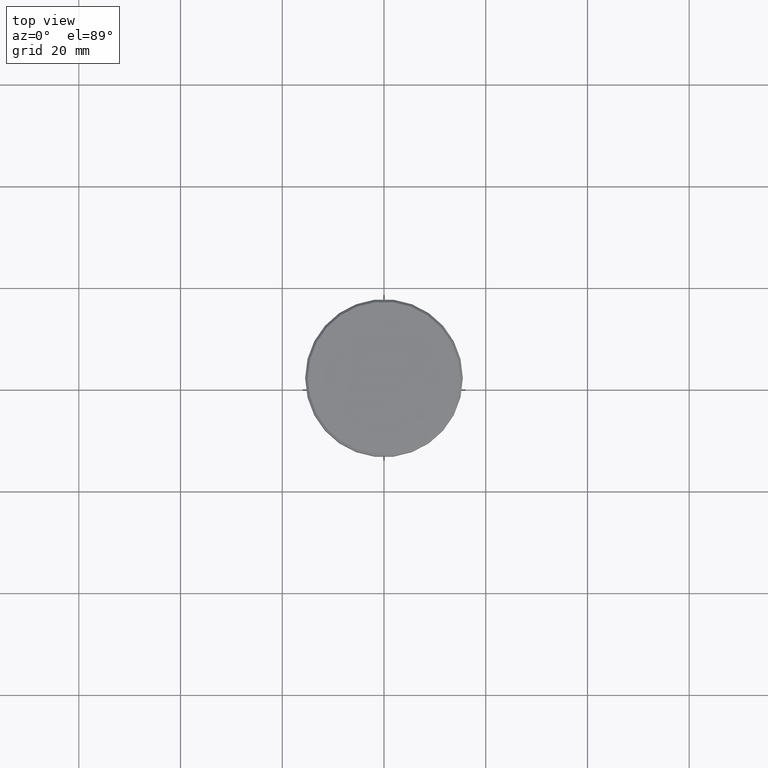
[diagram: clean part render]
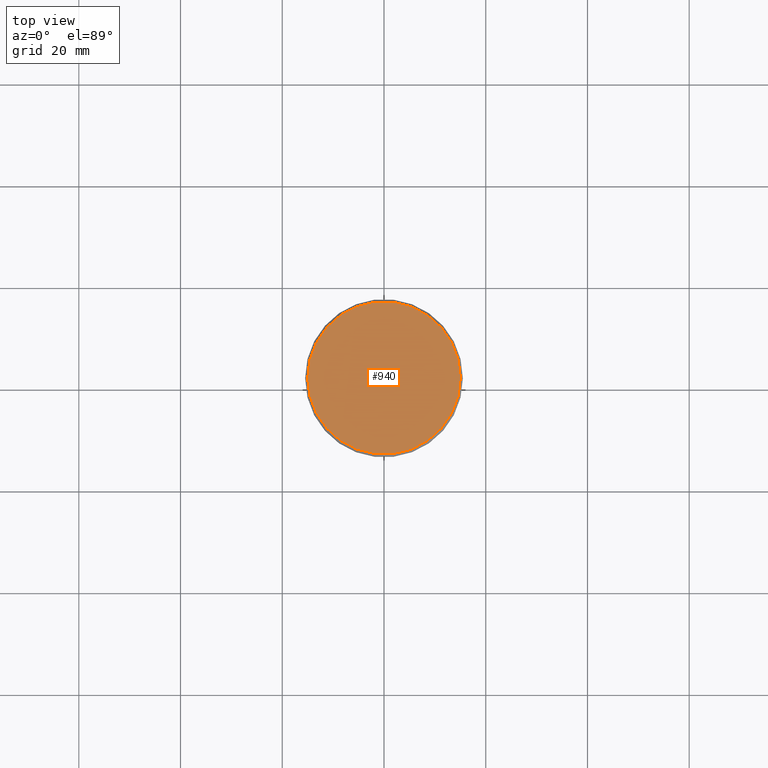
[diagram: same view with one face highlighted and labeled with its STEP entity id]
A machine part, top view. The second image highlights one B-rep face of the part: STEP entity #940.
In plain terms, the highlighted planar face has unit normal (0, -0, 1).
Its self-contained STEP definition (entity closure, byte-faithful):
#13 = AXIS2_PLACEMENT_3D ( 'NONE', #776, #1125, #671 ) ;
#119 = AXIS2_PLACEMENT_3D ( 'NONE', #798, #1170, #359 ) ;
#359 = DIRECTION ( 'NONE',  ( 1.000000000000000000, 0.000000000000000000, 0.000000000000000000 ) ) ;
#367 = PLANE ( 'NONE',  #119 ) ;
#529 = CIRCLE ( 'NONE', #658, 14.99999999999997158 ) ;
#620 = FACE_OUTER_BOUND ( 'NONE', #889, .T. ) ;
#658 = AXIS2_PLACEMENT_3D ( 'NONE', #1068, #1053, #675 ) ;
#671 = DIRECTION ( 'NONE',  ( 1.000000000000000000, 0.000000000000000000, 0.000000000000000000 ) ) ;
#675 = DIRECTION ( 'NONE',  ( 1.000000000000000000, 0.000000000000000000, 0.000000000000000000 ) ) ;
#690 = VERTEX_POINT ( 'NONE', #1150 ) ;
#698 = CIRCLE ( 'NONE', #13, 14.99999999999997158 ) ;
#766 = EDGE_CURVE ( 'NONE', #690, #787, #529, .T. ) ;
#776 = CARTESIAN_POINT ( 'NONE',  ( 0.000000000000000000, 0.000000000000000000, 0.000000000000000000 ) ) ;
#787 = VERTEX_POINT ( 'NONE', #968 ) ;
#798 = CARTESIAN_POINT ( 'NONE',  ( 0.000000000000000000, 0.000000000000000000, 0.000000000000000000 ) ) ;
#889 = EDGE_LOOP ( 'NONE', ( #891, #929 ) ) ;
#891 = ORIENTED_EDGE ( 'NONE', *, *, #1034, .T. ) ;
#929 = ORIENTED_EDGE ( 'NONE', *, *, #766, .T. ) ;
#940 = ADVANCED_FACE ( 'NONE', ( #620 ), #367, .T. ) ;
#968 = CARTESIAN_POINT ( 'NONE',  ( -14.99999999999997158, 0.000000000000000000, 0.000000000000000000 ) ) ;
#1034 = EDGE_CURVE ( 'NONE', #787, #690, #698, .T. ) ;
#1053 = DIRECTION ( 'NONE',  ( -0.000000000000000000, -0.000000000000000000, 1.000000000000000000 ) ) ;
#1068 = CARTESIAN_POINT ( 'NONE',  ( 0.000000000000000000, 0.000000000000000000, 0.000000000000000000 ) ) ;
#1125 = DIRECTION ( 'NONE',  ( -0.000000000000000000, -0.000000000000000000, 1.000000000000000000 ) ) ;
#1150 = CARTESIAN_POINT ( 'NONE',  ( 14.99999999999997158, 1.867586368699711798E-15, 0.000000000000000000 ) ) ;
#1170 = DIRECTION ( 'NONE',  ( 0.000000000000000000, -0.000000000000000000, 1.000000000000000000 ) ) ;